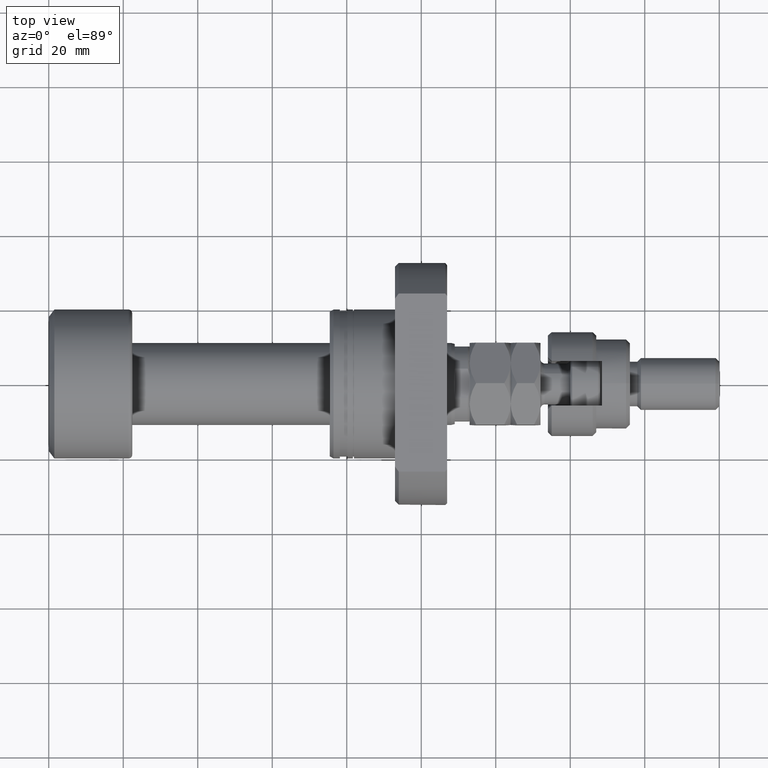
[diagram: clean part render]
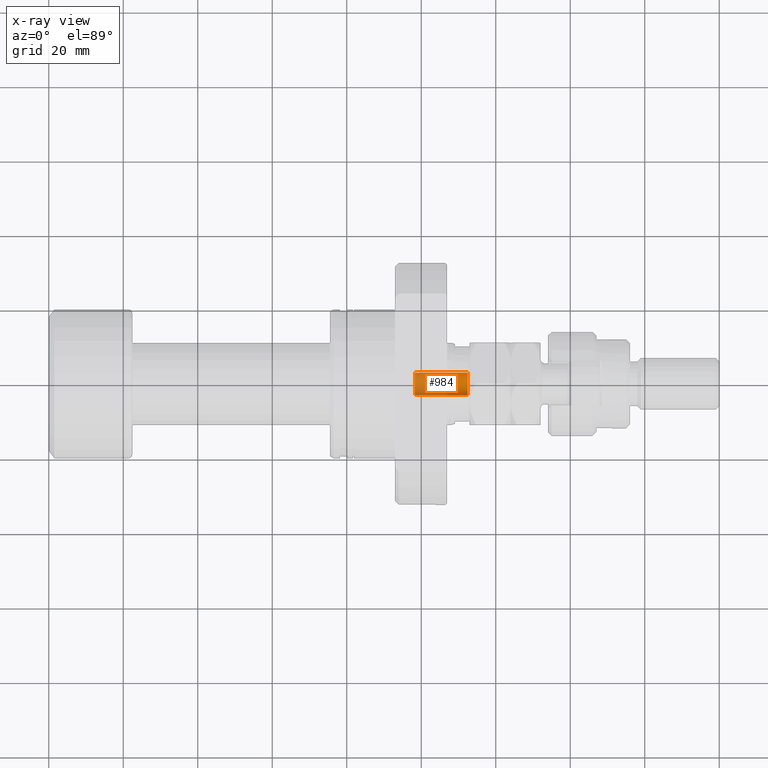
[diagram: x-ray — body ghosted, one internal face saturated and labeled with its STEP entity id]
A machine part, top view, then the same camera in x-ray: the body is ghosted and one INTERNAL B-rep face — a face not visible from any outside direction — is saturated and labeled: STEP entity #984.
In plain terms, the highlighted cylindrical surface (edge-blend (fillet) strip) has radius 3 mm, axis along (1, -0, 0).
Its self-contained STEP definition (entity closure, byte-faithful):
#133 = AXIS2_PLACEMENT_3D ( 'NONE', #2532, #2657, #321 ) ;
#171 = CARTESIAN_POINT ( 'NONE',  ( 112.5000000000001279, 2.999999999998683720, 0.000000000000000000 ) ) ;
#217 = DIRECTION ( 'NONE',  ( 1.850371707708255865E-14, 1.000000000000000000, 0.000000000000000000 ) ) ;
#321 = DIRECTION ( 'NONE',  ( 1.850371707708255865E-14, 1.000000000000000000, 0.000000000000000000 ) ) ;
#335 = AXIS2_PLACEMENT_3D ( 'NONE', #784, #2556, #1752 ) ;
#433 = CIRCLE ( 'NONE', #133, 3.000000000000548450 ) ;
#435 = DIRECTION ( 'NONE',  ( 1.000000000000000000, -1.657264799492230625E-14, -0.000000000000000000 ) ) ;
#760 = VERTEX_POINT ( 'NONE', #3346 ) ;
#784 = CARTESIAN_POINT ( 'NONE',  ( 112.5000000000000711, -1.864422899428760604E-12, 0.000000000000000000 ) ) ;
#984 = ADVANCED_FACE ( 'NONE', ( #4950 ), #3998, .F. ) ;
#1047 = VECTOR ( 'NONE', #435, 1000.000000000000000 ) ;
#1257 = VERTEX_POINT ( 'NONE', #171 ) ;
#1469 = ORIENTED_EDGE ( 'NONE', *, *, #1476, .F. ) ;
#1476 = EDGE_CURVE ( 'NONE', #1673, #3505, #433, .T. ) ;
#1613 = VECTOR ( 'NONE', #5896, 1000.000000000000000 ) ;
#1673 = VERTEX_POINT ( 'NONE', #5650 ) ;
#1752 = DIRECTION ( 'NONE',  ( -1.850371707708255865E-14, -1.000000000000000000, 0.000000000000000000 ) ) ;
#2024 = ORIENTED_EDGE ( 'NONE', *, *, #3233, .T. ) ;
#2204 = CIRCLE ( 'NONE', #335, 3.000000000000548450 ) ;
#2532 = CARTESIAN_POINT ( 'NONE',  ( 98.29999999999998295, -1.629091297900862408E-12, 0.000000000000000000 ) ) ;
#2556 = DIRECTION ( 'NONE',  ( 1.000000000000000000, -1.657264799492235042E-14, 0.000000000000000000 ) ) ;
#2651 = DIRECTION ( 'NONE',  ( 1.000000000000000000, -1.657264799492230625E-14, -0.000000000000000000 ) ) ;
#2657 = DIRECTION ( 'NONE',  ( 1.000000000000000000, -1.657264799492230625E-14, 0.000000000000000000 ) ) ;
#2912 = EDGE_CURVE ( 'NONE', #3505, #1257, #3097, .T. ) ;
#3097 = LINE ( 'NONE', #5454, #1613 ) ;
#3223 = LINE ( 'NONE', #6036, #1047 ) ;
#3233 = EDGE_CURVE ( 'NONE', #760, #1257, #2204, .T. ) ;
#3263 = AXIS2_PLACEMENT_3D ( 'NONE', #4487, #2651, #217 ) ;
#3346 = CARTESIAN_POINT ( 'NONE',  ( 112.5000000000000142, -3.000000000002412293, 3.673940397442874367E-16 ) ) ;
#3505 = VERTEX_POINT ( 'NONE', #5215 ) ;
#3927 = ORIENTED_EDGE ( 'NONE', *, *, #2912, .F. ) ;
#3998 = CYLINDRICAL_SURFACE ( 'NONE', #3263, 3.000000000000548450 ) ;
#4487 = CARTESIAN_POINT ( 'NONE',  ( 98.29999999999998295, -1.629091297900862408E-12, 0.000000000000000000 ) ) ;
#4515 = EDGE_LOOP ( 'NONE', ( #1469, #5162, #2024, #3927 ) ) ;
#4950 = FACE_OUTER_BOUND ( 'NONE', #4515, .T. ) ;
#5162 = ORIENTED_EDGE ( 'NONE', *, *, #5176, .T. ) ;
#5176 = EDGE_CURVE ( 'NONE', #1673, #760, #3223, .T. ) ;
#5215 = CARTESIAN_POINT ( 'NONE',  ( 98.30000000000003979, 2.999999999998919531, 0.000000000000000000 ) ) ;
#5454 = CARTESIAN_POINT ( 'NONE',  ( 98.30000000000003979, 2.999999999998919531, 0.000000000000000000 ) ) ;
#5650 = CARTESIAN_POINT ( 'NONE',  ( 98.29999999999992610, -3.000000000002176925, 3.673940397442730893E-16 ) ) ;
#5896 = DIRECTION ( 'NONE',  ( 1.000000000000000000, -1.657264799492230625E-14, -0.000000000000000000 ) ) ;
#6036 = CARTESIAN_POINT ( 'NONE',  ( 98.29999999999992610, -3.000000000002176925, 3.673940397442730893E-16 ) ) ;